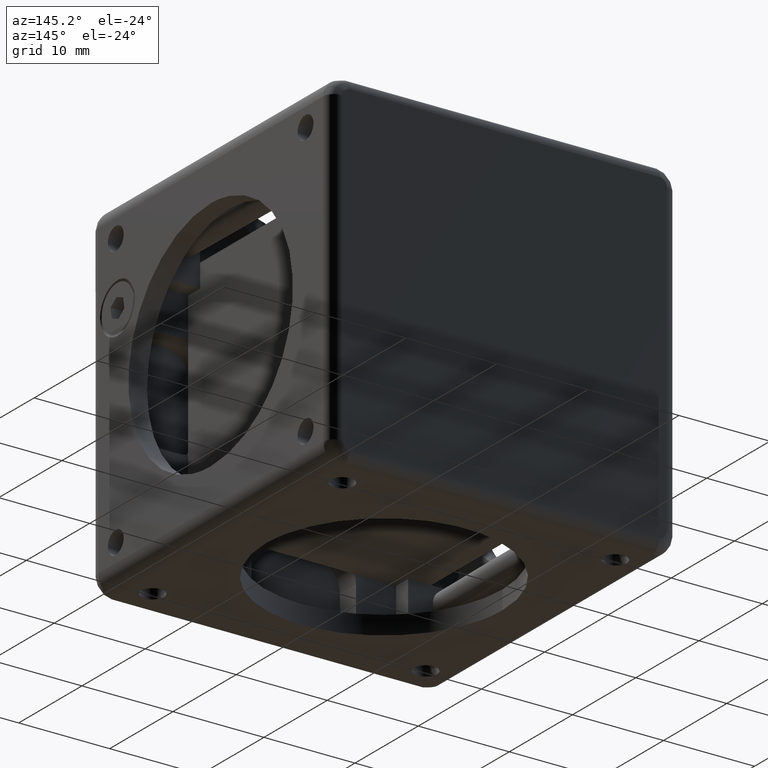
[diagram: clean part render]
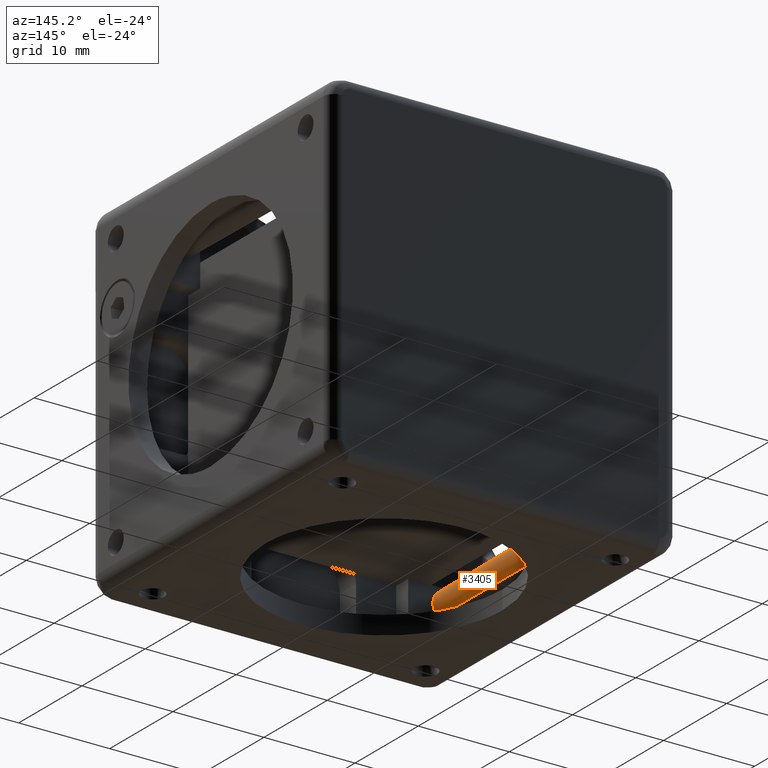
[diagram: same view with one face highlighted and labeled with its STEP entity id]
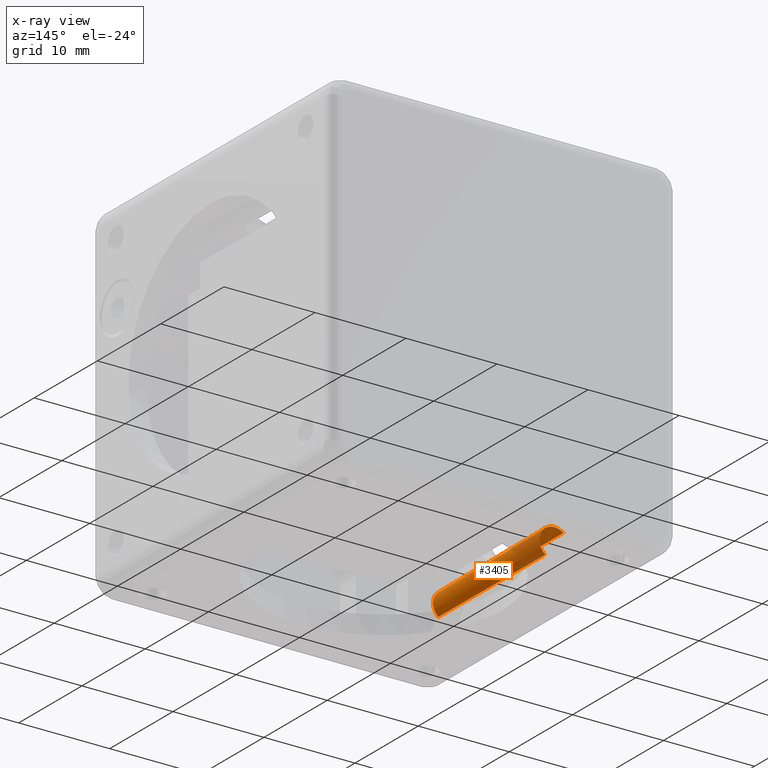
[diagram: x-ray of the same camera — body ghosted, the highlighted face saturated]
A machine part, auxiliary view. The second image highlights one B-rep face of the part: STEP entity #3405.
The next image is the same camera in x-ray: the body ghosted, the highlighted face saturated — about 29% of this face is hidden behind the body in this view.
In plain terms, the highlighted face is a freeform B-spline surface patch.
Its self-contained STEP definition (entity closure, byte-faithful):
#279 = CARTESIAN_POINT ( 'NONE',  ( -343.2996937317470270, 2.790719525421520242, 22.42879872285619669 ) ) ;
#747 = ORIENTED_EDGE ( 'NONE', *, *, #5885, .F. ) ;
#894 = EDGE_LOOP ( 'NONE', ( #8516, #8346, #5713, #747, #3683 ) ) ;
#946 = CARTESIAN_POINT ( 'NONE',  ( -343.2106827857267035, 2.790719525421520686, 22.57348727954700962 ) ) ;
#1020 = CARTESIAN_POINT ( 'NONE',  ( -343.2622776595829919, 19.79071952542150115, 22.37888861874330004 ) ) ;
#1037 = CARTESIAN_POINT ( 'NONE',  ( -344.2507940824680190, 2.790719525421520242, 25.28750000000000142 ) ) ;
#1093 = CARTESIAN_POINT ( 'NONE',  ( -343.2622776595829919, 19.79071952542150115, 22.37888861874330004 ) ) ;
#1101 = CARTESIAN_POINT ( 'NONE',  ( -345.2393105053540125, 19.79071952542150115, 25.02111138125679801 ) ) ;
#1214 = CARTESIAN_POINT ( 'NONE',  ( -342.9143365757719266, 2.790719525421520686, 22.94800236554247164 ) ) ;
#1480 = EDGE_CURVE ( 'NONE', #3448, #1878, #7895, .T. ) ;
#1515 = CARTESIAN_POINT ( 'NONE',  ( -345.2393105053540125, 19.79071952542150115, 25.02111138125679801 ) ) ;
#1541 =( BOUNDED_CURVE ( )  B_SPLINE_CURVE ( 3, ( #6747, #1891, #7534, #8882 ),
 .UNSPECIFIED., .F., .F. ) 
 B_SPLINE_CURVE_WITH_KNOTS ( ( 4, 4 ),
 ( 0.000000000000000000, 1.000000000000000000 ),
 .UNSPECIFIED. ) 
 CURVE ( )  GEOMETRIC_REPRESENTATION_ITEM ( )  RATIONAL_B_SPLINE_CURVE ( ( 1.000000000000000000, 0.3333333333333329818, 0.3333333333333329818, 1.000000000000000000 ) ) 
 REPRESENTATION_ITEM ( '' )  );
#1588 = CARTESIAN_POINT ( 'NONE',  ( -345.2018944331894659, 2.790719525421520242, 24.97120127713479931 ) ) ;
#1634 = CARTESIAN_POINT ( 'NONE',  ( -344.2507940824680190, 2.790719525421520242, 25.28750000000000142 ) ) ;
#1730 = B_SPLINE_CURVE_WITH_KNOTS ( 'NONE', 3,
 ( #279, #946, #3165, #1214, #8829, #1794, #2451, #5307, #8129, #5216, #8175, #1748, #3119, #4650, #1959, #2668, #3822, #1037 ),
 .UNSPECIFIED., .F., .F.,
 ( 4, 2, 2, 2, 2, 2, 2, 2, 4 ),
 ( 0.2045604630056205020, 0.3039904051299179288, 0.4034203472542153834, 0.5028502893785128380, 0.6022802315028102926, 0.7017101736271077472, 0.8011401157514050908, 0.9005700578757025454, 1.000000000000000000 ),
 .UNSPECIFIED. ) ;
#1748 = CARTESIAN_POINT ( 'NONE',  ( -343.1149910528037026, 2.790719525421520686, 24.72999865564404232 ) ) ;
#1794 = CARTESIAN_POINT ( 'NONE',  ( -342.7475364494016503, 2.790719525421520686, 23.39640568962298772 ) ) ;
#1808 = CARTESIAN_POINT ( 'NONE',  ( -340.6200548970692807, 19.79071952542151180, 24.35592146451410045 ) ) ;
#1846 = CARTESIAN_POINT ( 'NONE',  ( -343.2996937317470270, 2.790719525421520242, 22.42879872285619669 ) ) ;
#1878 = VERTEX_POINT ( 'NONE', #4577 ) ;
#1891 = CARTESIAN_POINT ( 'NONE',  ( -340.6200548970693376, 19.79071952542151180, 24.35592146451410756 ) ) ;
#1959 = CARTESIAN_POINT ( 'NONE',  ( -343.6317043819558421, 2.790719525421520686, 25.10258507034641440 ) ) ;
#2295 = CARTESIAN_POINT ( 'NONE',  ( -344.6382918621037561, 2.790719525421520242, 25.35000000000029985 ) ) ;
#2342 = CARTESIAN_POINT ( 'NONE',  ( -344.9755334895237979, 2.790719525421520242, 25.21848150146550793 ) ) ;
#2421 = CARTESIAN_POINT ( 'NONE',  ( -343.2622776595829919, 2.790719525421520242, 22.37888861874330004 ) ) ;
#2451 = CARTESIAN_POINT ( 'NONE',  ( -342.7244553555747757, 2.790719525421520686, 23.55326424263401464 ) ) ;
#2668 = CARTESIAN_POINT ( 'NONE',  ( -343.9339278364658412, 2.790719525421520686, 25.20051701406929112 ) ) ;
#2681 = VERTEX_POINT ( 'NONE', #1515 ) ;
#3024 = EDGE_CURVE ( 'NONE', #3448, #2681, #4528, .T. ) ;
#3119 = CARTESIAN_POINT ( 'NONE',  ( -343.2309435423642867, 2.790719525421520686, 24.84496901585537643 ) ) ;
#3165 = CARTESIAN_POINT ( 'NONE',  ( -343.0967413292911488, 2.790719525421520686, 22.69039601831809350 ) ) ;
#3178 = VERTEX_POINT ( 'NONE', #1020 ) ;
#3405 = ADVANCED_FACE ( 'NONE', ( #7543 ), #5470, .T. ) ;
#3448 = VERTEX_POINT ( 'NONE', #8102 ) ;
#3631 = CARTESIAN_POINT ( 'NONE',  ( -345.2018944331894659, 2.790719525421520242, 24.97120127713479931 ) ) ;
#3683 = ORIENTED_EDGE ( 'NONE', *, *, #5993, .T. ) ;
#3822 = CARTESIAN_POINT ( 'NONE',  ( -344.0899204942182905, 2.790719525421520686, 25.22499999999999787 ) ) ;
#4528 = B_SPLINE_CURVE_WITH_KNOTS ( 'NONE', 1,
 ( #3631, #8505 ),
 .UNSPECIFIED., .F., .F.,
 ( 2, 2 ),
 ( 0.000000000000000000, 1.000000000000000000 ),
 .UNSPECIFIED. ) ;
#4577 = CARTESIAN_POINT ( 'NONE',  ( -344.2507940824680190, 2.790719525421520242, 25.28750000000000142 ) ) ;
#4650 = CARTESIAN_POINT ( 'NONE',  ( -343.4869576049282500, 2.790719525421520686, 25.02975235352751682 ) ) ;
#4666 = CARTESIAN_POINT ( 'NONE',  ( -345.2393105053540125, 2.790719525421520242, 25.02111138125679801 ) ) ;
#4710 = CARTESIAN_POINT ( 'NONE',  ( -340.6200548970692807, 2.790719525421518910, 24.35592146451410045 ) ) ;
#4713 = EDGE_CURVE ( 'NONE', #6911, #1878, #1730, .T. ) ;
#5216 = CARTESIAN_POINT ( 'NONE',  ( -342.8538844624596322, 2.790719525421520686, 24.33179632274192272 ) ) ;
#5307 = CARTESIAN_POINT ( 'NONE',  ( -342.7272526374934500, 2.790719525421520686, 23.87437483031534668 ) ) ;
#5368 = CARTESIAN_POINT ( 'NONE',  ( -342.5970877428399604, 19.79071952542151180, 26.99814422702759487 ) ) ;
#5470 =( BOUNDED_SURFACE ( )  B_SPLINE_SURFACE ( 3, 1, ( 
 ( #7359, #2421 ),
 ( #1808, #4710 ),
 ( #5368, #8191 ),
 ( #1101, #4666 ) ),
 .UNSPECIFIED., .F., .F., .F. ) 
 B_SPLINE_SURFACE_WITH_KNOTS ( ( 4, 4 ),
 ( 2, 2 ),
 ( 0.000000000000000000, 1.000000000000000000 ),
 ( 0.000000000000000000, 1.000000000000000000 ),
 .UNSPECIFIED. ) 
 GEOMETRIC_REPRESENTATION_ITEM ( )  RATIONAL_B_SPLINE_SURFACE ( (
 ( 1.000000000000000000, 1.000000000000000000),
 ( 0.3333333333333329818, 0.3333333333333329818),
 ( 0.3333333333333329818, 0.3333333333333329818),
 ( 1.000000000000000000, 1.000000000000000000) ) ) 
 REPRESENTATION_ITEM ( '' )  SURFACE ( )  );
#5713 = ORIENTED_EDGE ( 'NONE', *, *, #4713, .F. ) ;
#5885 = EDGE_CURVE ( 'NONE', #3178, #6911, #9136, .T. ) ;
#5993 = EDGE_CURVE ( 'NONE', #3178, #2681, #1541, .T. ) ;
#6747 = CARTESIAN_POINT ( 'NONE',  ( -343.2622776595829919, 19.79071952542150115, 22.37888861874330004 ) ) ;
#6911 = VERTEX_POINT ( 'NONE', #6992 ) ;
#6992 = CARTESIAN_POINT ( 'NONE',  ( -343.2996937317470270, 2.790719525421520242, 22.42879872285619669 ) ) ;
#7359 = CARTESIAN_POINT ( 'NONE',  ( -343.2622776595829919, 19.79071952542150115, 22.37888861874330004 ) ) ;
#7534 = CARTESIAN_POINT ( 'NONE',  ( -342.5970877428399604, 19.79071952542151180, 26.99814422702759131 ) ) ;
#7543 = FACE_OUTER_BOUND ( 'NONE', #894, .T. ) ;
#7895 =( BOUNDED_CURVE ( )  B_SPLINE_CURVE ( 3, ( #1588, #2342, #2295, #1634 ),
 .UNSPECIFIED., .F., .F. ) 
 B_SPLINE_CURVE_WITH_KNOTS ( ( 4, 4 ),
 ( 0.000000000000000000, 0.2496488235211714868 ),
 .UNSPECIFIED. ) 
 CURVE ( )  GEOMETRIC_REPRESENTATION_ITEM ( )  RATIONAL_B_SPLINE_CURVE ( ( 1.000000000000000000, 0.8335674509858677084, 0.7086845920287476730, 0.6253514231286400049 ) ) 
 REPRESENTATION_ITEM ( '' )  );
#8102 = CARTESIAN_POINT ( 'NONE',  ( -345.2018944331894659, 2.790719525421520242, 24.97120127713479931 ) ) ;
#8129 = CARTESIAN_POINT ( 'NONE',  ( -342.7531384588704100, 2.790719525421520686, 24.03008124633693043 ) ) ;
#8175 = CARTESIAN_POINT ( 'NONE',  ( -342.9278154715866549, 2.790719525421520686, 24.47555643500636791 ) ) ;
#8191 = CARTESIAN_POINT ( 'NONE',  ( -342.5970877428399604, 2.790719525421518910, 26.99814422702759487 ) ) ;
#8346 = ORIENTED_EDGE ( 'NONE', *, *, #1480, .T. ) ;
#8505 = CARTESIAN_POINT ( 'NONE',  ( -345.2393105053540125, 19.79071952542150115, 25.02111138125679801 ) ) ;
#8516 = ORIENTED_EDGE ( 'NONE', *, *, #3024, .F. ) ;
#8829 = CARTESIAN_POINT ( 'NONE',  ( -342.8426552932855316, 2.790719525421520686, 23.09363644873117138 ) ) ;
#8882 = CARTESIAN_POINT ( 'NONE',  ( -345.2393105053540125, 19.79071952542150115, 25.02111138125679801 ) ) ;
#9136 = B_SPLINE_CURVE_WITH_KNOTS ( 'NONE', 1,
 ( #1093, #1846 ),
 .UNSPECIFIED., .F., .F.,
 ( 2, 2 ),
 ( 0.000000000000000000, 1.000000000000000000 ),
 .UNSPECIFIED. ) ;